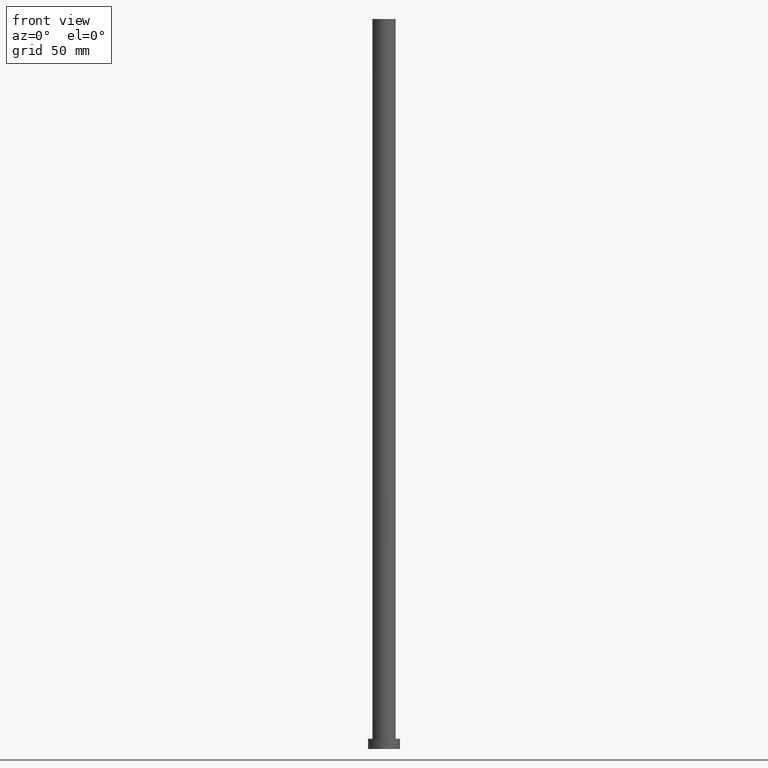
[diagram: clean part render]
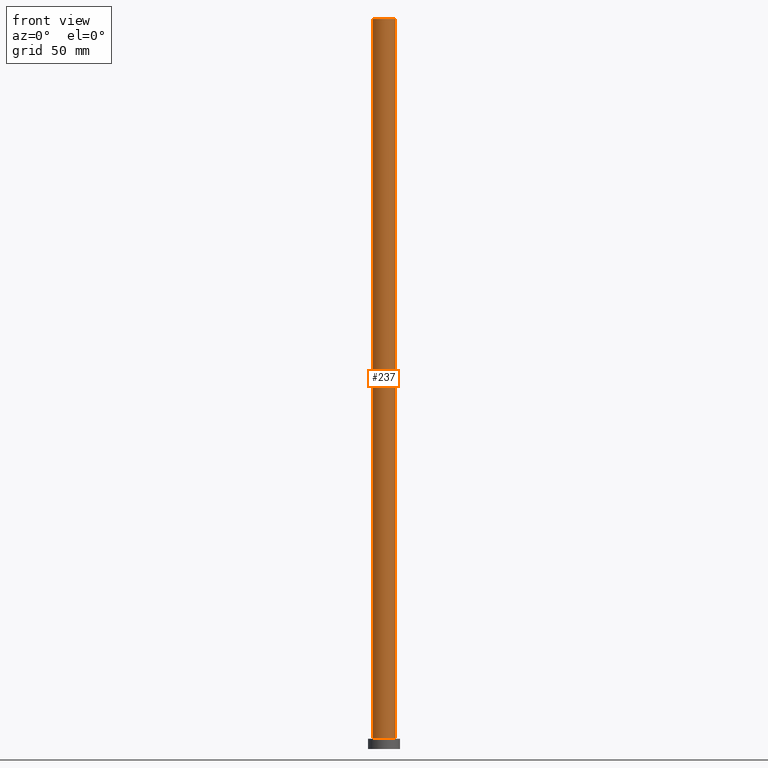
[diagram: same view with one face highlighted and labeled with its STEP entity id]
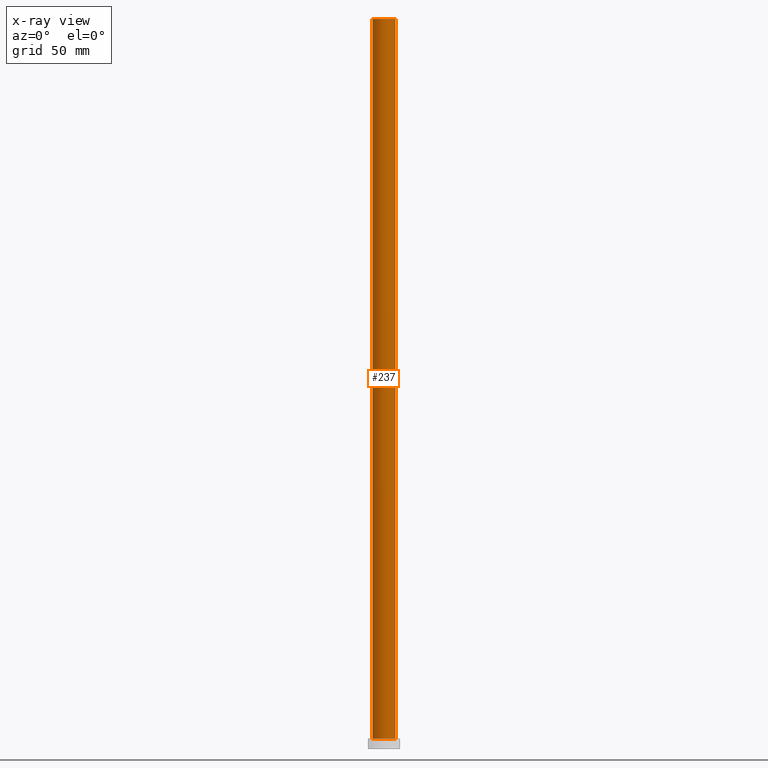
[diagram: x-ray of the same camera — body ghosted, the highlighted face saturated]
A machine part, front view. The second image highlights one B-rep face of the part: STEP entity #237.
The next image is the same camera in x-ray: the body ghosted, the highlighted face saturated — about 0% of this face is hidden behind the body in this view.
In plain terms, the highlighted cylindrical surface (edge-blend (fillet) strip) has radius 8 mm, axis along (-0, -0, -1).
Its self-contained STEP definition (entity closure, byte-faithful):
#11 = AXIS2_PLACEMENT_3D ( 'NONE', #233, #210, #236 ) ;
#15 = DIRECTION ( 'NONE',  ( -0.000000000000000000, -0.000000000000000000, -1.000000000000000000 ) ) ;
#38 = EDGE_CURVE ( 'NONE', #234, #64, #124, .T. ) ;
#43 = DIRECTION ( 'NONE',  ( -0.000000000000000000, -0.000000000000000000, -1.000000000000000000 ) ) ;
#49 = CARTESIAN_POINT ( 'NONE',  ( -8.000000000000000000, 0.000000000000000000, 500.0000000000000000 ) ) ;
#51 = CARTESIAN_POINT ( 'NONE',  ( 0.000000000000000000, 0.000000000000000000, 500.0000000000000000 ) ) ;
#52 = EDGE_CURVE ( 'NONE', #234, #224, #92, .T. ) ;
#64 = VERTEX_POINT ( 'NONE', #132 ) ;
#74 = ORIENTED_EDGE ( 'NONE', *, *, #110, .F. ) ;
#91 = DIRECTION ( 'NONE',  ( -0.000000000000000000, -0.000000000000000000, -1.000000000000000000 ) ) ;
#92 = LINE ( 'NONE', #189, #99 ) ;
#99 = VECTOR ( 'NONE', #15, 1000.000000000000000 ) ;
#105 = CIRCLE ( 'NONE', #11, 8.000000000000000000 ) ;
#110 = EDGE_CURVE ( 'NONE', #64, #249, #222, .T. ) ;
#113 = CYLINDRICAL_SURFACE ( 'NONE', #230, 8.000000000000000000 ) ;
#124 = CIRCLE ( 'NONE', #242, 8.000000000000000000 ) ;
#125 = CARTESIAN_POINT ( 'NONE',  ( 0.000000000000000000, 0.000000000000000000, 500.0000000000000000 ) ) ;
#126 = EDGE_LOOP ( 'NONE', ( #74, #246, #131, #219 ) ) ;
#131 = ORIENTED_EDGE ( 'NONE', *, *, #52, .T. ) ;
#132 = CARTESIAN_POINT ( 'NONE',  ( 8.000000000000000000, 9.797174393178825657E-16, 500.0000000000000000 ) ) ;
#139 = CARTESIAN_POINT ( 'NONE',  ( 8.000000000000000000, 9.797174393178825657E-16, 7.000000000000000000 ) ) ;
#143 = DIRECTION ( 'NONE',  ( 1.000000000000000000, 0.000000000000000000, 0.000000000000000000 ) ) ;
#181 = CARTESIAN_POINT ( 'NONE',  ( 8.000000000000000000, 9.797174393178825657E-16, 500.0000000000000000 ) ) ;
#188 = DIRECTION ( 'NONE',  ( -1.000000000000000000, 0.000000000000000000, 0.000000000000000000 ) ) ;
#189 = CARTESIAN_POINT ( 'NONE',  ( -8.000000000000000000, 0.000000000000000000, 500.0000000000000000 ) ) ;
#203 = CARTESIAN_POINT ( 'NONE',  ( -8.000000000000000000, 0.000000000000000000, 7.000000000000000000 ) ) ;
#204 = DIRECTION ( 'NONE',  ( 0.000000000000000000, 0.000000000000000000, 1.000000000000000000 ) ) ;
#206 = FACE_OUTER_BOUND ( 'NONE', #126, .T. ) ;
#210 = DIRECTION ( 'NONE',  ( 0.000000000000000000, 0.000000000000000000, 1.000000000000000000 ) ) ;
#217 = VECTOR ( 'NONE', #91, 1000.000000000000000 ) ;
#219 = ORIENTED_EDGE ( 'NONE', *, *, #255, .T. ) ;
#222 = LINE ( 'NONE', #181, #217 ) ;
#224 = VERTEX_POINT ( 'NONE', #203 ) ;
#230 = AXIS2_PLACEMENT_3D ( 'NONE', #125, #43, #188 ) ;
#233 = CARTESIAN_POINT ( 'NONE',  ( 0.000000000000000000, 0.000000000000000000, 7.000000000000000000 ) ) ;
#234 = VERTEX_POINT ( 'NONE', #49 ) ;
#236 = DIRECTION ( 'NONE',  ( 1.000000000000000000, 0.000000000000000000, 0.000000000000000000 ) ) ;
#237 = ADVANCED_FACE ( 'NONE', ( #206 ), #113, .T. ) ;
#242 = AXIS2_PLACEMENT_3D ( 'NONE', #51, #204, #143 ) ;
#246 = ORIENTED_EDGE ( 'NONE', *, *, #38, .F. ) ;
#249 = VERTEX_POINT ( 'NONE', #139 ) ;
#255 = EDGE_CURVE ( 'NONE', #224, #249, #105, .T. ) ;